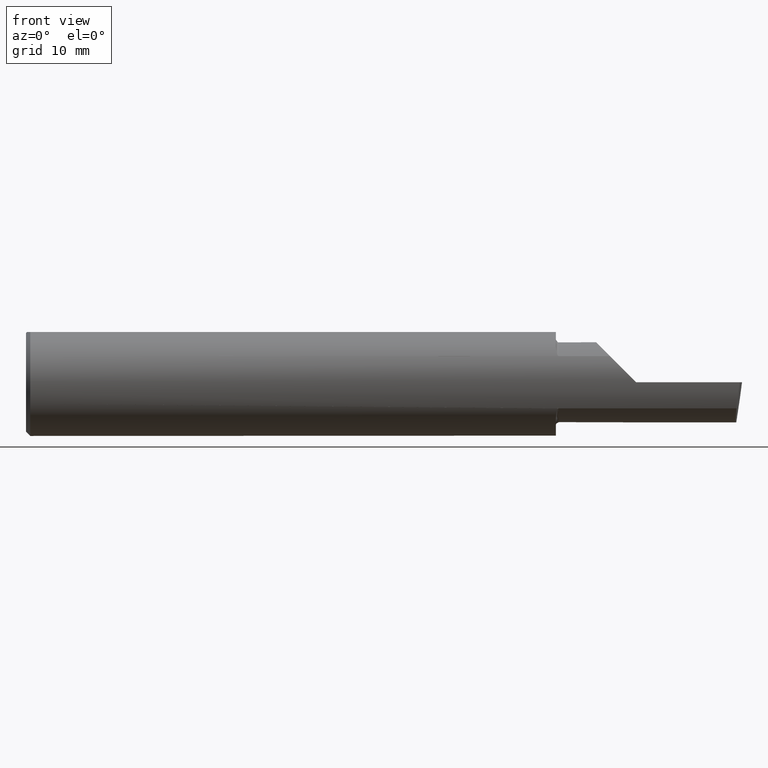
[diagram: clean part render]
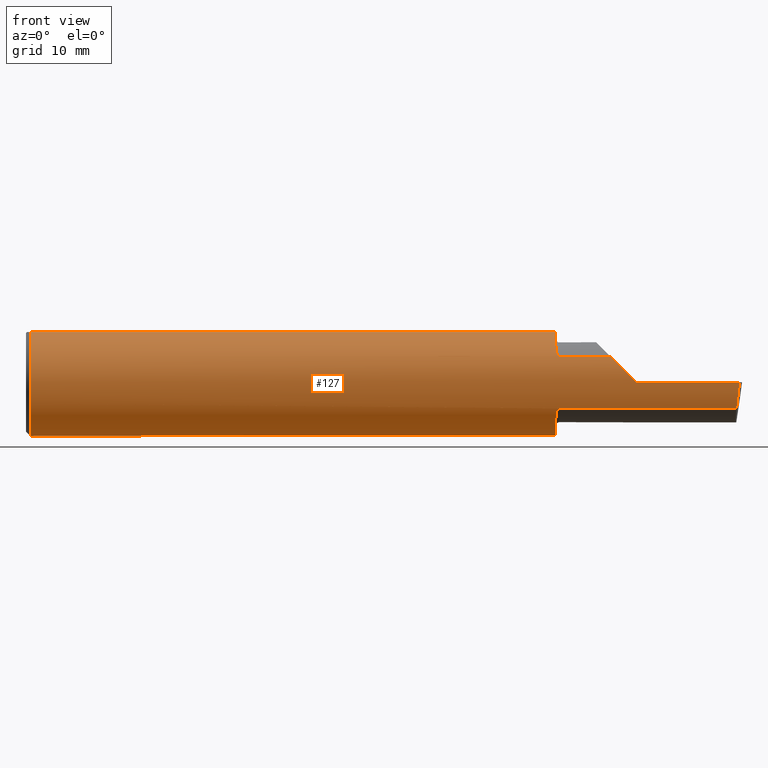
[diagram: same view with one face highlighted and labeled with its STEP entity id]
A machine part, front view. The second image highlights one B-rep face of the part: STEP entity #127.
In plain terms, the highlighted cylindrical surface (partial cylindrical patch) has radius 4.7587 mm, axis along (-1, -0, -0).
Its self-contained STEP definition (entity closure, byte-faithful):
#1 = CARTESIAN_POINT ( 'NONE',  ( 1.850000000000000311, 0.0000000000000000000, 0.0000000000000000000 ) ) ;
#5 = FACE_OUTER_BOUND ( 'NONE', #364, .T. ) ;
#8 = CARTESIAN_POINT ( 'NONE',  ( 0.0000000000000000000, 0.06597272163553663527, 0.1753499999999999781 ) ) ;
#12 = AXIS2_PLACEMENT_3D ( 'NONE', #357, #457, #370 ) ;
#13 = CIRCLE ( 'NONE', #402, 0.1873499999999999888 ) ;
#14 = DIRECTION ( 'NONE',  ( 0.0000000000000000000, 0.0000000000000000000, 1.000000000000000000 ) ) ;
#16 = CIRCLE ( 'NONE', #408, 0.1873499999999999888 ) ;
#18 = EDGE_CURVE ( 'NONE', #362, #407, #244, .T. ) ;
#26 = CARTESIAN_POINT ( 'NONE',  ( 1.850000000000000311, -0.1383256097560975062, -0.1263568288047932087 ) ) ;
#32 = CARTESIAN_POINT ( 'NONE',  ( 2.129999999999999893, -0.1873499999999999888, 1.065442715258197396E-16 ) ) ;
#34 = VERTEX_POINT ( 'NONE', #345 ) ;
#36 = EDGE_CURVE ( 'NONE', #588, #563, #304, .T. ) ;
#39 = CARTESIAN_POINT ( 'NONE',  ( 0.01499999999999999424, 0.06597272163553663527, 0.1753499999999999781 ) ) ;
#42 = CARTESIAN_POINT ( 'NONE',  ( 2.097861799102314961, -0.1873500000000000165, 0.03213820089768509858 ) ) ;
#45 = EDGE_CURVE ( 'NONE', #484, #512, #505, .T. ) ;
#48 = CARTESIAN_POINT ( 'NONE',  ( 0.01499999999999999424, 0.0000000000000000000, 0.0000000000000000000 ) ) ;
#74 = DIRECTION ( 'NONE',  ( 1.000000000000000000, 0.0000000000000000000, 0.0000000000000000000 ) ) ;
#76 = CARTESIAN_POINT ( 'NONE',  ( 0.01499999999999999424, 0.0000000000000000000, -0.1873499999999999888 ) ) ;
#81 = CARTESIAN_POINT ( 'NONE',  ( 1.852284340146846953, -0.1548226717605716285, -0.1055657780131311618 ) ) ;
#84 = ORIENTED_EDGE ( 'NONE', *, *, #249, .T. ) ;
#86 = CARTESIAN_POINT ( 'NONE',  ( 2.024999999999999911, -0.1635956445993030084, -0.09130436773856176469 ) ) ;
#91 = ORIENTED_EDGE ( 'NONE', *, *, #358, .F. ) ;
#101 = VECTOR ( 'NONE', #567, 39.37007874015748143 ) ;
#103 = CARTESIAN_POINT ( 'NONE',  ( 1.858200855161538323, -0.1632467142437135921, -0.09192985110639206869 ) ) ;
#104 = ORIENTED_EDGE ( 'NONE', *, *, #349, .F. ) ;
#107 = CARTESIAN_POINT ( 'NONE',  ( 1.850000000000000311, -0.1383256097560975062, 0.1263568288047932087 ) ) ;
#108 = ORIENTED_EDGE ( 'NONE', *, *, #36, .F. ) ;
#120 = CARTESIAN_POINT ( 'NONE',  ( 1.860000000000000098, -0.1635956445993029529, 0.09130436773856188959 ) ) ;
#127 = ADVANCED_FACE ( 'NONE', ( #5 ), #269, .T. ) ;
#165 = VECTOR ( 'NONE', #173, 39.37007874015748143 ) ;
#169 = DIRECTION ( 'NONE',  ( -1.000000000000000000, -0.0000000000000000000, -0.0000000000000000000 ) ) ;
#172 = VERTEX_POINT ( 'NONE', #380 ) ;
#173 = DIRECTION ( 'NONE',  ( -1.000000000000000000, -0.0000000000000000000, -0.0000000000000000000 ) ) ;
#184 = CARTESIAN_POINT ( 'NONE',  ( 2.491672876940991710, -0.1873499999999999888, 6.915950918908297591E-17 ) ) ;
#186 = VECTOR ( 'NONE', #292, 39.37007874015748143 ) ;
#192 = CARTESIAN_POINT ( 'NONE',  ( 2.487725449370724817, -0.1873500000000000443, -0.03213820089768506388 ) ) ;
#200 = CARTESIAN_POINT ( 'NONE',  ( 1.860000000000000098, -0.1635956445993029251, -0.09130436773856194510 ) ) ;
#209 = CARTESIAN_POINT ( 'NONE',  ( 1.860000000000000098, -0.1635956445993029251, -0.09130436773856194510 ) ) ;
#213 = DIRECTION ( 'NONE',  ( 0.0000000000000000000, 0.0000000000000000000, 1.000000000000000000 ) ) ;
#218 = VECTOR ( 'NONE', #74, 39.37007874015748143 ) ;
#220 = CARTESIAN_POINT ( 'NONE',  ( 2.481080296960508580, -0.1635956445993030084, -0.09130436773856176469 ) ) ;
#228 = VERTEX_POINT ( 'NONE', #209 ) ;
#229 = ORIENTED_EDGE ( 'NONE', *, *, #390, .F. ) ;
#233 = AXIS2_PLACEMENT_3D ( 'NONE', #494, #446, #14 ) ;
#236 = CIRCLE ( 'NONE', #389, 0.1873499999999999888 ) ;
#237 = CARTESIAN_POINT ( 'NONE',  ( 2.038695632261437130, -0.1635956445993029529, 0.09130436773856191734 ) ) ;
#238 = CARTESIAN_POINT ( 'NONE',  ( 2.066758987970638284, -0.1792580844883770730, 0.06324101202936138755 ) ) ;
#240 = CARTESIAN_POINT ( 'NONE',  ( 2.484117089522337452, -0.1792580844883771007, -0.06324101202936138755 ) ) ;
#244 = CIRCLE ( 'NONE', #12, 0.1873499999999999888 ) ;
#245 = DIRECTION ( 'NONE',  ( 0.0000000000000000000, 1.000000000000000000, 0.0000000000000000000 ) ) ;
#249 = EDGE_CURVE ( 'NONE', #338, #34, #542, .T. ) ;
#251 = CARTESIAN_POINT ( 'NONE',  ( 2.129999999999999893, -0.1873499999999999888, 1.065442715258197396E-16 ) ) ;
#256 = CARTESIAN_POINT ( 'NONE',  ( 2.024999999999999911, -0.1635956445993030084, 0.09130436773856176469 ) ) ;
#265 = CARTESIAN_POINT ( 'NONE',  ( 1.850000000000000533, -0.1434457138613161875, -0.1207517378170855221 ) ) ;
#267 = CARTESIAN_POINT ( 'NONE',  ( 1.857002686248069967, -0.1625222757049325228, 0.09320450095779621302 ) ) ;
#269 = CYLINDRICAL_SURFACE ( 'NONE', #233, 0.1873499999999999888 ) ;
#271 = CARTESIAN_POINT ( 'NONE',  ( 1.850535130224571612, -0.1482744458446705882, -0.1147666934430601887 ) ) ;
#272 = CARTESIAN_POINT ( 'NONE',  ( 3.377502344341257155E-32, -0.1873499999999999610, 3.267291166268304703E-16 ) ) ;
#273 = ORIENTED_EDGE ( 'NONE', *, *, #440, .F. ) ;
#276 = CARTESIAN_POINT ( 'NONE',  ( 1.855249642630817153, -0.1607705839484630805, -0.09620717711675592920 ) ) ;
#278 = B_SPLINE_CURVE_WITH_KNOTS ( 'NONE', 3,
 ( #507, #499, #425, #508, #374, #409, #385, #395, #267, #297, #336, #335 ),
 .UNSPECIFIED., .F., .F.,
 ( 4, 2, 2, 2, 2, 4 ),
 ( 0.0009392928737449068215, 0.001524303482983960841, 0.001816808787603487905, 0.001963061439913248510, 0.002036187766068128704, 0.002109314092223008898 ),
 .UNSPECIFIED. ) ;
#281 = CARTESIAN_POINT ( 'NONE',  ( 1.850000000000000311, -0.06597272163553659363, 0.1753499999999999781 ) ) ;
#287 = ORIENTED_EDGE ( 'NONE', *, *, #455, .T. ) ;
#288 =( BOUNDED_CURVE ( )  B_SPLINE_CURVE ( 3, ( #220, #240, #192, #184 ),
 .UNSPECIFIED., .F., .T. ) 
 B_SPLINE_CURVE_WITH_KNOTS ( ( 4, 4 ),
 ( 0.8516985021657650368, 1.360746882515200484 ),
 .UNSPECIFIED. ) 
 CURVE ( )  GEOMETRIC_REPRESENTATION_ITEM ( )  RATIONAL_B_SPLINE_CURVE ( ( 1.000000000000000000, 0.9785221379938656705, 0.9785221379938656705, 1.000000000000000000 ) ) 
 REPRESENTATION_ITEM ( '' )  );
#292 = DIRECTION ( 'NONE',  ( -1.000000000000000000, -6.829619984160658046E-18, -0.0000000000000000000 ) ) ;
#296 = CARTESIAN_POINT ( 'NONE',  ( 2.491672876940991710, -0.1873499999999999888, 6.915950918908297591E-17 ) ) ;
#297 = CARTESIAN_POINT ( 'NONE',  ( 1.858216394543445338, -0.1632528125625389848, 0.09191892236924030513 ) ) ;
#302 = EDGE_CURVE ( 'NONE', #442, #34, #16, .T. ) ;
#304 = LINE ( 'NONE', #256, #101 ) ;
#319 = DIRECTION ( 'NONE',  ( -1.000000000000000000, -0.0000000000000000000, -0.0000000000000000000 ) ) ;
#324 = CARTESIAN_POINT ( 'NONE',  ( 2.038695632261437130, -0.1635956445993029529, 0.09130436773856191734 ) ) ;
#328 = CARTESIAN_POINT ( 'NONE',  ( 0.01499999999999999424, 0.0000000000000000000, 0.0000000000000000000 ) ) ;
#333 = LINE ( 'NONE', #86, #186 ) ;
#335 = CARTESIAN_POINT ( 'NONE',  ( 1.860000000000000098, -0.1635956445993029529, 0.09130436773856188959 ) ) ;
#336 = CARTESIAN_POINT ( 'NONE',  ( 1.859029114488072842, -0.1635956446012896415, 0.09130436773500356928 ) ) ;
#338 = VERTEX_POINT ( 'NONE', #281 ) ;
#342 = CARTESIAN_POINT ( 'NONE',  ( 0.0000000000000000000, -0.06597272163553657975, 0.1753499999999999781 ) ) ;
#345 = CARTESIAN_POINT ( 'NONE',  ( 0.01499999999999997863, -0.06597272163553657975, 0.1753499999999999781 ) ) ;
#347 = ORIENTED_EDGE ( 'NONE', *, *, #449, .T. ) ;
#349 = EDGE_CURVE ( 'NONE', #595, #588, #278, .T. ) ;
#351 = CARTESIAN_POINT ( 'NONE',  ( 1.850000000000000311, 0.06597272163553663527, 0.1753499999999999781 ) ) ;
#353 = ORIENTED_EDGE ( 'NONE', *, *, #516, .T. ) ;
#357 = CARTESIAN_POINT ( 'NONE',  ( 1.850000000000000311, 0.0000000000000000000, 0.0000000000000000000 ) ) ;
#358 = EDGE_CURVE ( 'NONE', #471, #442, #236, .T. ) ;
#359 =( BOUNDED_CURVE ( )  B_SPLINE_CURVE ( 3, ( #251, #42, #238, #237 ),
 .UNSPECIFIED., .F., .F. ) 
 B_SPLINE_CURVE_WITH_KNOTS ( ( 4, 4 ),
 ( 4.712388980384689674, 5.221437360734125122 ),
 .UNSPECIFIED. ) 
 CURVE ( )  GEOMETRIC_REPRESENTATION_ITEM ( )  RATIONAL_B_SPLINE_CURVE ( ( 1.000000000000000000, 0.9785221379938656705, 0.9785221379938656705, 1.000000000000000000 ) ) 
 REPRESENTATION_ITEM ( '' )  );
#361 = B_SPLINE_CURVE_WITH_KNOTS ( 'NONE', 3,
 ( #200, #466, #103, #580, #574, #276, #520, #579, #81, #271, #265, #461 ),
 .UNSPECIFIED., .F., .F.,
 ( 4, 2, 2, 2, 2, 4 ),
 ( 1.968964099585697359E-07, 7.414172666648550939E-05, 0.0001480865569230124454, 0.0002959762174360593785, 0.0005917555384621507510, 0.001183314180514336966 ),
 .UNSPECIFIED. ) ;
#362 = VERTEX_POINT ( 'NONE', #26 ) ;
#364 = EDGE_LOOP ( 'NONE', ( #229, #287, #543, #347, #108, #104, #524, #84, #551, #91, #353, #444, #273 ) ) ;
#370 = DIRECTION ( 'NONE',  ( 0.0000000000000000000, 1.000000000000000000, 0.0000000000000000000 ) ) ;
#374 = CARTESIAN_POINT ( 'NONE',  ( 1.853030094855348642, -0.1569359418858942423, 0.1023945457153807304 ) ) ;
#380 = CARTESIAN_POINT ( 'NONE',  ( 2.481080296960508580, -0.1635956445993030084, -0.09130436773856176469 ) ) ;
#385 = CARTESIAN_POINT ( 'NONE',  ( 1.855270962286581282, -0.1607994114084981829, 0.09615890281982662768 ) ) ;
#389 = AXIS2_PLACEMENT_3D ( 'NONE', #48, #549, #587 ) ;
#390 = EDGE_CURVE ( 'NONE', #172, #228, #333, .T. ) ;
#395 = CARTESIAN_POINT ( 'NONE',  ( 1.856530533518345294, -0.1621041320318381274, 0.09393089788995188927 ) ) ;
#402 = AXIS2_PLACEMENT_3D ( 'NONE', #1, #592, #245 ) ;
#407 = VERTEX_POINT ( 'NONE', #351 ) ;
#408 = AXIS2_PLACEMENT_3D ( 'NONE', #328, #319, #213 ) ;
#409 = CARTESIAN_POINT ( 'NONE',  ( 1.854651161669206294, -0.1598575446545091039, 0.09771880834312089703 ) ) ;
#425 = CARTESIAN_POINT ( 'NONE',  ( 1.850530357231195522, -0.1482623167742068426, 0.1147852156680473495 ) ) ;
#440 = EDGE_CURVE ( 'NONE', #228, #362, #361, .T. ) ;
#442 = VERTEX_POINT ( 'NONE', #76 ) ;
#444 = ORIENTED_EDGE ( 'NONE', *, *, #18, .F. ) ;
#446 = DIRECTION ( 'NONE',  ( -1.000000000000000000, -0.0000000000000000000, -0.0000000000000000000 ) ) ;
#448 = LINE ( 'NONE', #8, #218 ) ;
#449 = EDGE_CURVE ( 'NONE', #512, #563, #359, .T. ) ;
#455 = EDGE_CURVE ( 'NONE', #172, #484, #288, .T. ) ;
#457 = DIRECTION ( 'NONE',  ( 1.000000000000000000, 6.829619984160658046E-18, 0.0000000000000000000 ) ) ;
#461 = CARTESIAN_POINT ( 'NONE',  ( 1.850000000000000311, -0.1383256097560975062, -0.1263568288047932087 ) ) ;
#466 = CARTESIAN_POINT ( 'NONE',  ( 1.859014641741961738, -0.1635956445993029529, -0.09130436773856194510 ) ) ;
#471 = VERTEX_POINT ( 'NONE', #39 ) ;
#484 = VERTEX_POINT ( 'NONE', #296 ) ;
#494 = CARTESIAN_POINT ( 'NONE',  ( 0.0000000000000000000, 0.0000000000000000000, 0.0000000000000000000 ) ) ;
#499 = CARTESIAN_POINT ( 'NONE',  ( 1.850000000000000533, -0.1434410963562315344, 0.1207567927018307619 ) ) ;
#505 = LINE ( 'NONE', #272, #165 ) ;
#507 = CARTESIAN_POINT ( 'NONE',  ( 1.850000000000000311, -0.1383256097560975062, 0.1263568288047932087 ) ) ;
#508 = CARTESIAN_POINT ( 'NONE',  ( 1.852291668372491484, -0.1548472237252444261, 0.1055305370847128416 ) ) ;
#511 = VECTOR ( 'NONE', #169, 39.37007874015748143 ) ;
#512 = VERTEX_POINT ( 'NONE', #32 ) ;
#516 = EDGE_CURVE ( 'NONE', #471, #407, #448, .T. ) ;
#520 = CARTESIAN_POINT ( 'NONE',  ( 1.854627300813618929, -0.1598199155693380280, -0.09778034674766643286 ) ) ;
#524 = ORIENTED_EDGE ( 'NONE', *, *, #578, .F. ) ;
#542 = LINE ( 'NONE', #342, #511 ) ;
#543 = ORIENTED_EDGE ( 'NONE', *, *, #45, .T. ) ;
#549 = DIRECTION ( 'NONE',  ( -1.000000000000000000, -0.0000000000000000000, -0.0000000000000000000 ) ) ;
#551 = ORIENTED_EDGE ( 'NONE', *, *, #302, .F. ) ;
#563 = VERTEX_POINT ( 'NONE', #324 ) ;
#567 = DIRECTION ( 'NONE',  ( 1.000000000000000000, 6.829619984160658046E-18, 0.0000000000000000000 ) ) ;
#574 = CARTESIAN_POINT ( 'NONE',  ( 1.856503643436637763, -0.1620795007490428707, -0.09397341491037329575 ) ) ;
#578 = EDGE_CURVE ( 'NONE', #338, #595, #13, .T. ) ;
#579 = CARTESIAN_POINT ( 'NONE',  ( 1.853013987655237171, -0.1568958379530026870, -0.1024560150687156973 ) ) ;
#580 = CARTESIAN_POINT ( 'NONE',  ( 1.856977885846546661, -0.1625039841807085217, -0.09323648621225567867 ) ) ;
#587 = DIRECTION ( 'NONE',  ( 0.0000000000000000000, 0.0000000000000000000, 1.000000000000000000 ) ) ;
#588 = VERTEX_POINT ( 'NONE', #120 ) ;
#592 = DIRECTION ( 'NONE',  ( 1.000000000000000000, 6.829619984160658046E-18, 0.0000000000000000000 ) ) ;
#595 = VERTEX_POINT ( 'NONE', #107 ) ;